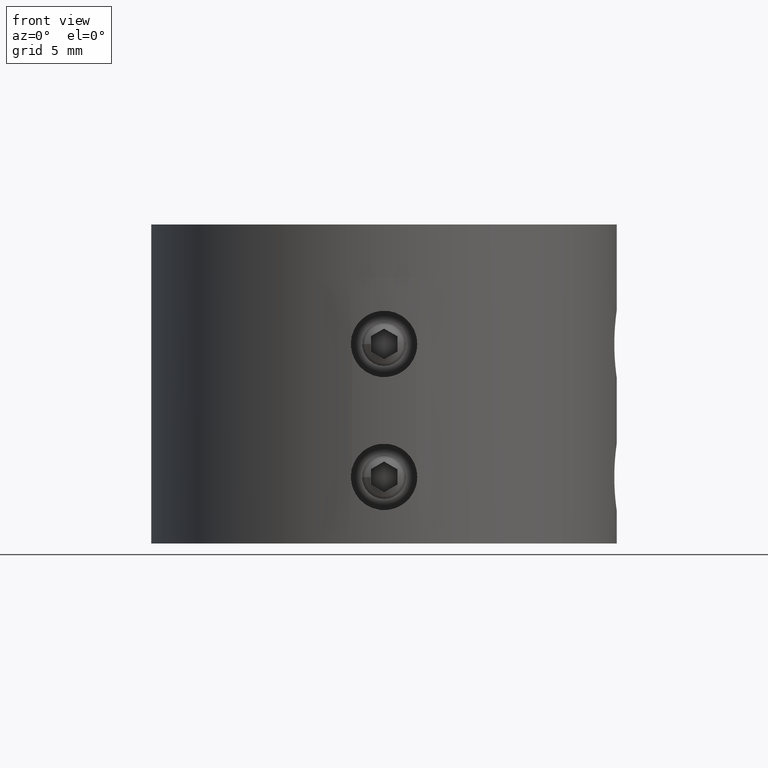
[diagram: clean part render]
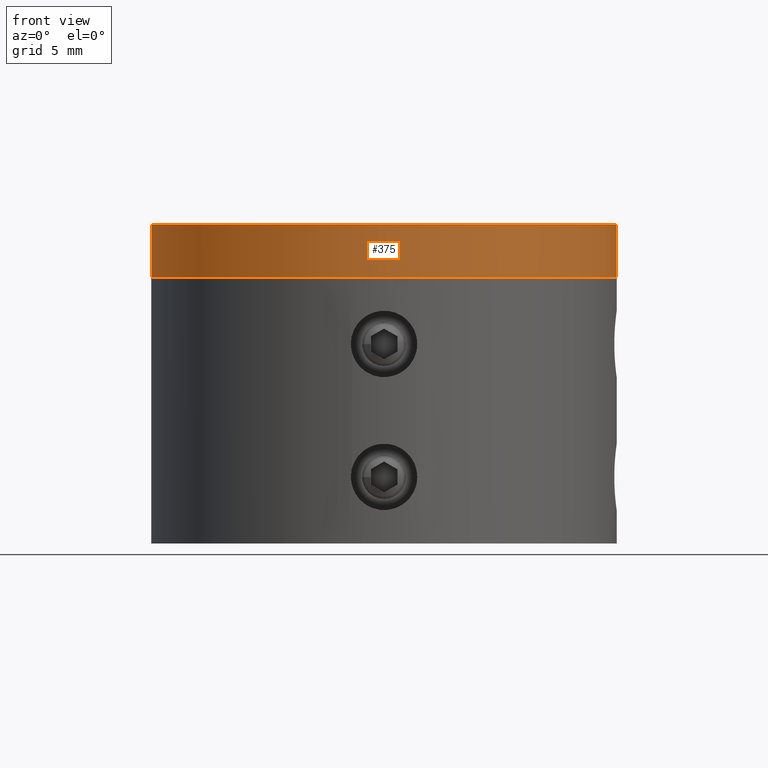
[diagram: same view with one face highlighted and labeled with its STEP entity id]
A machine part, front view. The second image highlights one B-rep face of the part: STEP entity #375.
In plain terms, the highlighted cylindrical surface (bore or boss wall) has radius 17.5 mm, axis along (-0, 0, -1).
Its self-contained STEP definition (entity closure, byte-faithful):
#375 = ADVANCED_FACE( '', ( #486, #487 ), #488, .T. );
#486 = FACE_OUTER_BOUND( '', #658, .T. );
#487 = FACE_OUTER_BOUND( '', #659, .T. );
#488 = CYLINDRICAL_SURFACE( '', #660, 17.5000000000000 );
#658 = EDGE_LOOP( '', ( #862 ) );
#659 = EDGE_LOOP( '', ( #863 ) );
#660 = AXIS2_PLACEMENT_3D( '', #864, #865, #866 );
#862 = ORIENTED_EDGE( '', *, *, #1206, .T. );
#863 = ORIENTED_EDGE( '', *, *, #1207, .F. );
#864 = CARTESIAN_POINT( '', ( 0.000000000000000, 0.000000000000000, -14.0000000000000 ) );
#865 = DIRECTION( '', ( -0.000000000000000, 0.000000000000000, -1.00000000000000 ) );
#866 = DIRECTION( '', ( -1.00000000000000, 0.000000000000000, 0.000000000000000 ) );
#1206 = EDGE_CURVE( '', #1338, #1338, #1339, .T. );
#1207 = EDGE_CURVE( '', #1340, #1340, #1341, .T. );
#1338 = VERTEX_POINT( '', #1994 );
#1339 = CIRCLE( '', #1995, 17.5000000000000 );
#1340 = VERTEX_POINT( '', #1996 );
#1341 = CIRCLE( '', #1997, 17.5000000000000 );
#1994 = CARTESIAN_POINT( '', ( 17.5000000000000, 0.000000000000000, -14.0000000000000 ) );
#1995 = AXIS2_PLACEMENT_3D( '', #2350, #2351, #2352 );
#1996 = CARTESIAN_POINT( '', ( 17.5000000000000, 0.000000000000000, -10.0000000000000 ) );
#1997 = AXIS2_PLACEMENT_3D( '', #2353, #2354, #2355 );
#2350 = CARTESIAN_POINT( '', ( 0.000000000000000, 0.000000000000000, -14.0000000000000 ) );
#2351 = DIRECTION( '', ( 0.000000000000000, -0.000000000000000, 1.00000000000000 ) );
#2352 = DIRECTION( '', ( 1.00000000000000, 0.000000000000000, 0.000000000000000 ) );
#2353 = CARTESIAN_POINT( '', ( 0.000000000000000, 0.000000000000000, -10.0000000000000 ) );
#2354 = DIRECTION( '', ( 0.000000000000000, -0.000000000000000, 1.00000000000000 ) );
#2355 = DIRECTION( '', ( 1.00000000000000, 0.000000000000000, 0.000000000000000 ) );